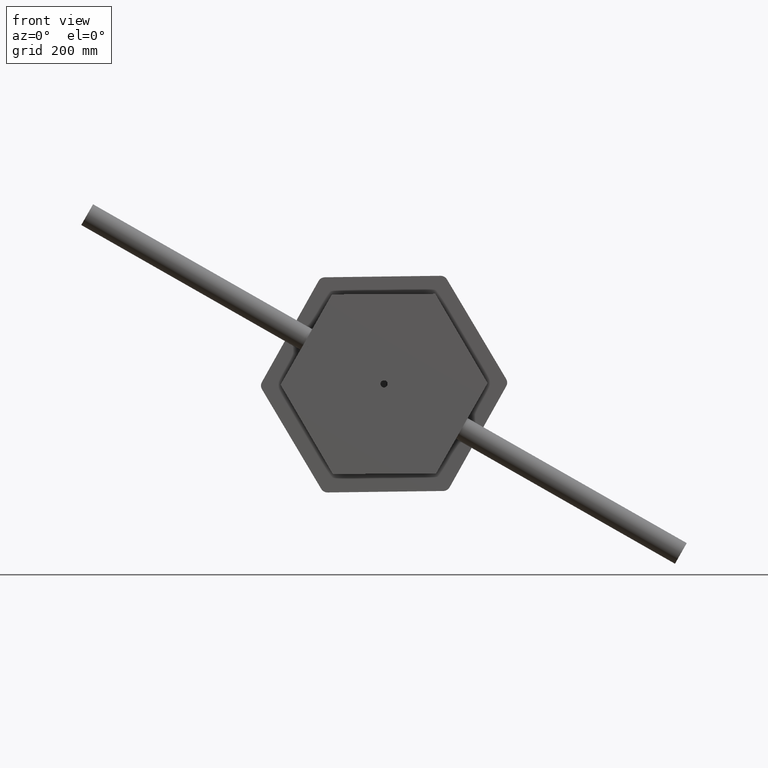
[diagram: clean part render]
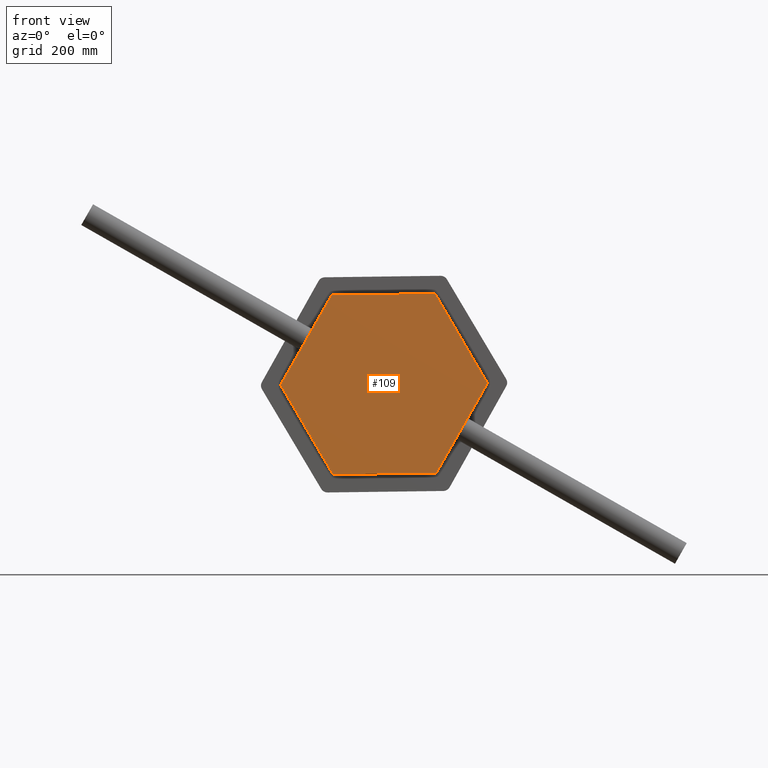
[diagram: same view with one face highlighted and labeled with its STEP entity id]
A machine part, front view. The second image highlights one B-rep face of the part: STEP entity #109.
In plain terms, the highlighted planar face has unit normal (0, -1, 0).
Its self-contained STEP definition (entity closure, byte-faithful):
#109 = ADVANCED_FACE ( 'NONE', ( #27555, #26741 ), #6443, .T. ) ;
#758 = CARTESIAN_POINT ( 'NONE',  ( -173.1145889543301735, -1.252467087093037001, 1.500000000000000000 ) ) ;
#2331 = DIRECTION ( 'NONE',  ( 0.4951152175307384495, 0.8688273254044727167, 0.0000000000000000000 ) ) ;
#2536 = LINE ( 'NONE', #758, #15489 ) ;
#3194 = CARTESIAN_POINT ( 'NONE',  ( 85.68579531361253032, 150.7332187034791673, 1.500000000000000000 ) ) ;
#3332 = EDGE_CURVE ( 'NONE', #21903, #30435, #9503, .T. ) ;
#4591 = LINE ( 'NONE', #25546, #17521 ) ;
#4949 = VECTOR ( 'NONE', #24346, 1000.000000000000000 ) ;
#5063 = CARTESIAN_POINT ( 'NONE',  ( -6.000000000000002665, 0.0000000000000000000, 1.500000000000000000 ) ) ;
#5291 = AXIS2_PLACEMENT_3D ( 'NONE', #14551, #32689, #17129 ) ;
#5315 = VERTEX_POINT ( 'NONE', #5063 ) ;
#5674 = CARTESIAN_POINT ( 'NONE',  ( -85.68579531361250190, -150.7332187034791673, 1.500000000000000000 ) ) ;
#6260 = CARTESIAN_POINT ( 'NONE',  ( 173.1145889543301735, 1.252467087092951958, 1.500000000000000000 ) ) ;
#6443 = PLANE ( 'NONE',  #22330 ) ;
#7725 = ORIENTED_EDGE ( 'NONE', *, *, #12881, .T. ) ;
#7962 = CIRCLE ( 'NONE', #5291, 6.000000000000002665 ) ;
#8704 = EDGE_CURVE ( 'NONE', #26374, #5315, #7962, .T. ) ;
#9011 = DIRECTION ( 'NONE',  ( 1.000000000000000000, 0.0000000000000000000, -0.0000000000000000000 ) ) ;
#9503 = LINE ( 'NONE', #5674, #22478 ) ;
#9556 = EDGE_CURVE ( 'NONE', #5315, #26374, #14781, .T. ) ;
#9894 = VERTEX_POINT ( 'NONE', #23471 ) ;
#10868 = DIRECTION ( 'NONE',  ( 0.9999841440677316173, 0.005631306520363357423, 0.0000000000000000000 ) ) ;
#11076 = CARTESIAN_POINT ( 'NONE',  ( -87.05746031819400343, 149.7604330572676474, 1.500000000000000000 ) ) ;
#11327 = ORIENTED_EDGE ( 'NONE', *, *, #17080, .T. ) ;
#11330 = DIRECTION ( 'NONE',  ( -0.4951152175307385606, -0.8688273254044726057, 0.0000000000000000000 ) ) ;
#11390 = ORIENTED_EDGE ( 'NONE', *, *, #28978, .T. ) ;
#11499 = CARTESIAN_POINT ( 'NONE',  ( -85.68579531361250190, -150.7332187034791673, 1.500000000000000000 ) ) ;
#11841 = LINE ( 'NONE', #6260, #4949 ) ;
#11934 = VECTOR ( 'NONE', #31919, 1000.000000000000114 ) ;
#12053 = ORIENTED_EDGE ( 'NONE', *, *, #8704, .F. ) ;
#12737 = LINE ( 'NONE', #11076, #11934 ) ;
#12881 = EDGE_CURVE ( 'NONE', #25713, #28099, #12737, .T. ) ;
#13467 = CARTESIAN_POINT ( 'NONE',  ( 173.1145889543301735, 1.252467087092951958, 1.500000000000000000 ) ) ;
#13868 = CARTESIAN_POINT ( 'NONE',  ( 0.0000000000000000000, 0.0000000000000000000, 1.500000000000000000 ) ) ;
#14551 = CARTESIAN_POINT ( 'NONE',  ( 0.0000000000000000000, 0.0000000000000000000, 1.500000000000000000 ) ) ;
#14781 = CIRCLE ( 'NONE', #27646, 6.000000000000002665 ) ;
#15318 = ORIENTED_EDGE ( 'NONE', *, *, #17492, .T. ) ;
#15489 = VECTOR ( 'NONE', #18852, 1000.000000000000227 ) ;
#16465 = DIRECTION ( 'NONE',  ( 1.000000000000000000, 0.0000000000000000000, 0.0000000000000000000 ) ) ;
#16512 = VERTEX_POINT ( 'NONE', #13467 ) ;
#16577 = ORIENTED_EDGE ( 'NONE', *, *, #28105, .T. ) ;
#16771 = LINE ( 'NONE', #26844, #25309 ) ;
#17080 = EDGE_CURVE ( 'NONE', #9894, #21903, #2536, .T. ) ;
#17129 = DIRECTION ( 'NONE',  ( 1.000000000000000000, 0.0000000000000000000, 0.0000000000000000000 ) ) ;
#17492 = EDGE_CURVE ( 'NONE', #16512, #25713, #11841, .T. ) ;
#17521 = VECTOR ( 'NONE', #2331, 1000.000000000000000 ) ;
#18852 = DIRECTION ( 'NONE',  ( 0.5048689265369956658, -0.8631960188841127923, 0.0000000000000000000 ) ) ;
#21375 = CARTESIAN_POINT ( 'NONE',  ( 6.000000000000002665, 7.347880794884122694E-16, 1.500000000000000000 ) ) ;
#21516 = CARTESIAN_POINT ( 'NONE',  ( -87.05746031819400343, 149.7604330572676474, 1.500000000000000000 ) ) ;
#21527 = EDGE_LOOP ( 'NONE', ( #7725, #16577, #11327, #30102, #11390, #15318 ) ) ;
#21903 = VERTEX_POINT ( 'NONE', #11499 ) ;
#21992 = CARTESIAN_POINT ( 'NONE',  ( 87.05746031819408870, -149.7604330572676474, 1.500000000000000000 ) ) ;
#22330 = AXIS2_PLACEMENT_3D ( 'NONE', #29653, #32246, #9011 ) ;
#22478 = VECTOR ( 'NONE', #10868, 1000.000000000000114 ) ;
#23471 = CARTESIAN_POINT ( 'NONE',  ( -173.1145889543301735, -1.252467087093037001, 1.500000000000000000 ) ) ;
#23525 = EDGE_LOOP ( 'NONE', ( #30678, #12053 ) ) ;
#24346 = DIRECTION ( 'NONE',  ( -0.5048689265369953327, 0.8631960188841130144, 0.0000000000000000000 ) ) ;
#25309 = VECTOR ( 'NONE', #11330, 1000.000000000000114 ) ;
#25546 = CARTESIAN_POINT ( 'NONE',  ( 87.05746031819408870, -149.7604330572676474, 1.500000000000000000 ) ) ;
#25713 = VERTEX_POINT ( 'NONE', #3194 ) ;
#26374 = VERTEX_POINT ( 'NONE', #21375 ) ;
#26741 = FACE_BOUND ( 'NONE', #23525, .T. ) ;
#26844 = CARTESIAN_POINT ( 'NONE',  ( -87.05746031819400343, 149.7604330572676474, 1.500000000000000000 ) ) ;
#27555 = FACE_OUTER_BOUND ( 'NONE', #21527, .T. ) ;
#27646 = AXIS2_PLACEMENT_3D ( 'NONE', #13868, #32004, #16465 ) ;
#28099 = VERTEX_POINT ( 'NONE', #21516 ) ;
#28105 = EDGE_CURVE ( 'NONE', #28099, #9894, #16771, .T. ) ;
#28978 = EDGE_CURVE ( 'NONE', #30435, #16512, #4591, .T. ) ;
#29653 = CARTESIAN_POINT ( 'NONE',  ( 0.0000000000000000000, 0.0000000000000000000, 1.500000000000000000 ) ) ;
#30102 = ORIENTED_EDGE ( 'NONE', *, *, #3332, .T. ) ;
#30435 = VERTEX_POINT ( 'NONE', #21992 ) ;
#30678 = ORIENTED_EDGE ( 'NONE', *, *, #9556, .F. ) ;
#31919 = DIRECTION ( 'NONE',  ( -0.9999841440677316173, -0.005631306520363359158, -0.0000000000000000000 ) ) ;
#32004 = DIRECTION ( 'NONE',  ( 0.0000000000000000000, 0.0000000000000000000, 1.000000000000000000 ) ) ;
#32246 = DIRECTION ( 'NONE',  ( 0.0000000000000000000, -0.0000000000000000000, 1.000000000000000000 ) ) ;
#32689 = DIRECTION ( 'NONE',  ( 0.0000000000000000000, 0.0000000000000000000, 1.000000000000000000 ) ) ;